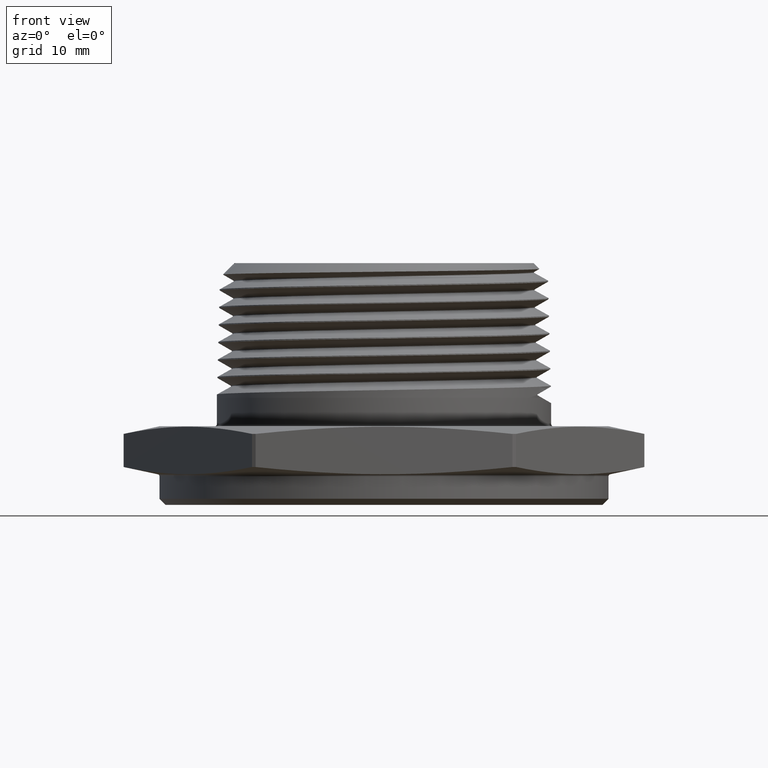
[diagram: clean part render]
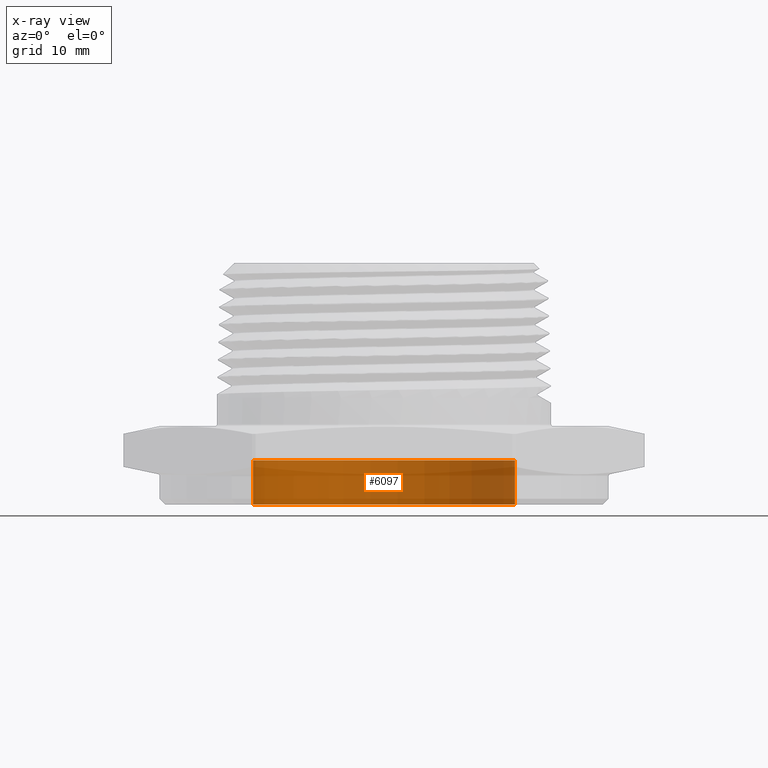
[diagram: x-ray — body ghosted, one internal face saturated and labeled with its STEP entity id]
A machine part, front view, then the same camera in x-ray: the body is ghosted and one INTERNAL B-rep face — a face not visible from any outside direction — is saturated and labeled: STEP entity #6097.
In plain terms, the highlighted cylindrical surface (partial cylindrical patch) has radius 16.51 mm, axis along (0, 0, -1).
Its self-contained STEP definition (entity closure, byte-faithful):
#9 = ORIENTED_EDGE ( 'NONE', *, *, #4439, .T. ) ;
#10 = ORIENTED_EDGE ( 'NONE', *, *, #4446, .T. ) ;
#11 = ORIENTED_EDGE ( 'NONE', *, *, #4447, .F. ) ;
#12 = ORIENTED_EDGE ( 'NONE', *, *, #4437, .F. ) ;
#59 = LINE ( 'NONE', #351, #66 ) ;
#65 = CIRCLE ( 'NONE', #4567, 0.6500000000000000200 ) ;
#66 = VECTOR ( 'NONE', #350, 39.37007874015748100 ) ;
#68 = LINE ( 'NONE', #368, #73 ) ;
#72 = CIRCLE ( 'NONE', #4569, 0.6500000000000000200 ) ;
#73 = VECTOR ( 'NONE', #1656, 39.37007874015748100 ) ;
#216 = FACE_OUTER_BOUND ( 'NONE', #6008, .T. ) ;
#230 = CYLINDRICAL_SURFACE ( 'NONE', #4633, 0.6500000000000000200 ) ;
#344 = CARTESIAN_POINT ( 'NONE',  ( 0.6500000000000000200, 7.960204194457796700E-017, 0.07000000000000002100 ) ) ;
#347 = CARTESIAN_POINT ( 'NONE',  ( -0.6500000000000000200, 0.0000000000000000000, 0.07000000000000002100 ) ) ;
#348 = CARTESIAN_POINT ( 'NONE',  ( -0.6500000000000000200, 0.0000000000000000000, -0.1499999999999999900 ) ) ;
#349 = CARTESIAN_POINT ( 'NONE',  ( 0.6500000000000000200, 7.960204194457796700E-017, -0.1499999999999999900 ) ) ;
#350 = DIRECTION ( 'NONE',  ( 0.0000000000000000000, 0.0000000000000000000, -1.000000000000000000 ) ) ;
#351 = CARTESIAN_POINT ( 'NONE',  ( -0.6500000000000000200, 0.0000000000000000000, 0.07000000000000002100 ) ) ;
#357 = CARTESIAN_POINT ( 'NONE',  ( 3.673940397442165500E-018, 0.0000000000000000000, 0.07000000000000002100 ) ) ;
#358 = DIRECTION ( 'NONE',  ( 0.0000000000000000000, 0.0000000000000000000, -1.000000000000000000 ) ) ;
#359 = DIRECTION ( 'NONE',  ( -1.000000000000000000, 0.0000000000000000000, 0.0000000000000000000 ) ) ;
#368 = CARTESIAN_POINT ( 'NONE',  ( 0.6500000000000000200, 7.960204194457796700E-017, 0.07000000000000002100 ) ) ;
#780 = CARTESIAN_POINT ( 'NONE',  ( 3.673940397442165500E-018, 0.0000000000000000000, 0.07000000000000002100 ) ) ;
#781 = DIRECTION ( 'NONE',  ( 0.0000000000000000000, 0.0000000000000000000, -1.000000000000000000 ) ) ;
#790 = DIRECTION ( 'NONE',  ( -1.000000000000000000, 0.0000000000000000000, 0.0000000000000000000 ) ) ;
#1656 = DIRECTION ( 'NONE',  ( 0.0000000000000000000, 0.0000000000000000000, -1.000000000000000000 ) ) ;
#1658 = CARTESIAN_POINT ( 'NONE',  ( 3.673940397442165500E-018, 0.0000000000000000000, -0.1499999999999999900 ) ) ;
#1659 = DIRECTION ( 'NONE',  ( 0.0000000000000000000, 0.0000000000000000000, -1.000000000000000000 ) ) ;
#1660 = DIRECTION ( 'NONE',  ( -1.000000000000000000, 0.0000000000000000000, 0.0000000000000000000 ) ) ;
#4271 = VERTEX_POINT ( 'NONE', #344 ) ;
#4274 = VERTEX_POINT ( 'NONE', #347 ) ;
#4275 = VERTEX_POINT ( 'NONE', #348 ) ;
#4276 = VERTEX_POINT ( 'NONE', #349 ) ;
#4437 = EDGE_CURVE ( 'NONE', #4274, #4275, #59, .T. ) ;
#4439 = EDGE_CURVE ( 'NONE', #4274, #4271, #65, .T. ) ;
#4446 = EDGE_CURVE ( 'NONE', #4271, #4276, #68, .T. ) ;
#4447 = EDGE_CURVE ( 'NONE', #4275, #4276, #72, .T. ) ;
#4567 = AXIS2_PLACEMENT_3D ( 'NONE', #357, #358, #359 ) ;
#4569 = AXIS2_PLACEMENT_3D ( 'NONE', #1658, #1659, #1660 ) ;
#4633 = AXIS2_PLACEMENT_3D ( 'NONE', #780, #781, #790 ) ;
#6008 = EDGE_LOOP ( 'NONE', ( #9, #10, #11, #12 ) ) ;
#6097 = ADVANCED_FACE ( 'NONE', ( #216 ), #230, .T. ) ;